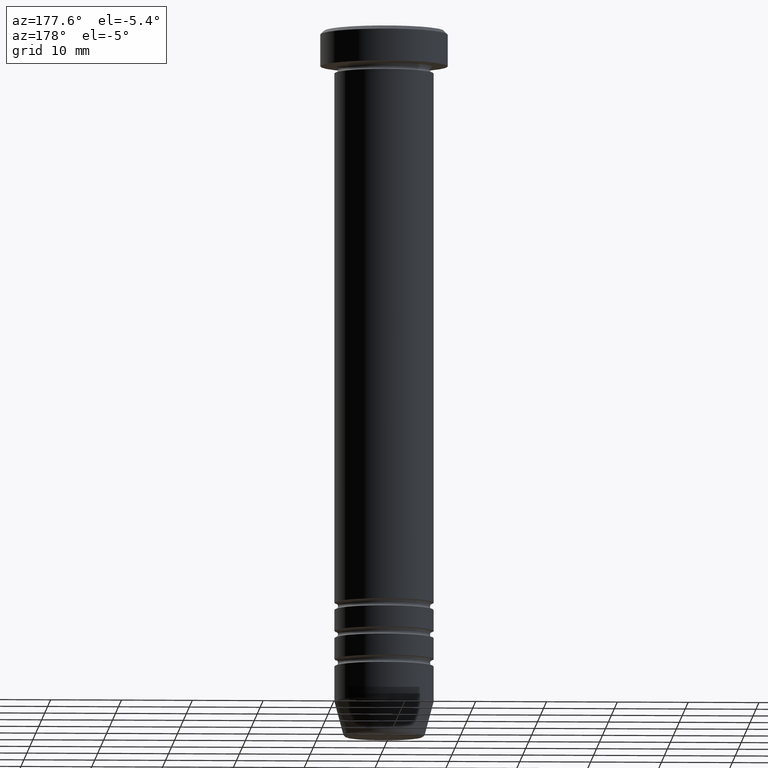
[diagram: clean part render]
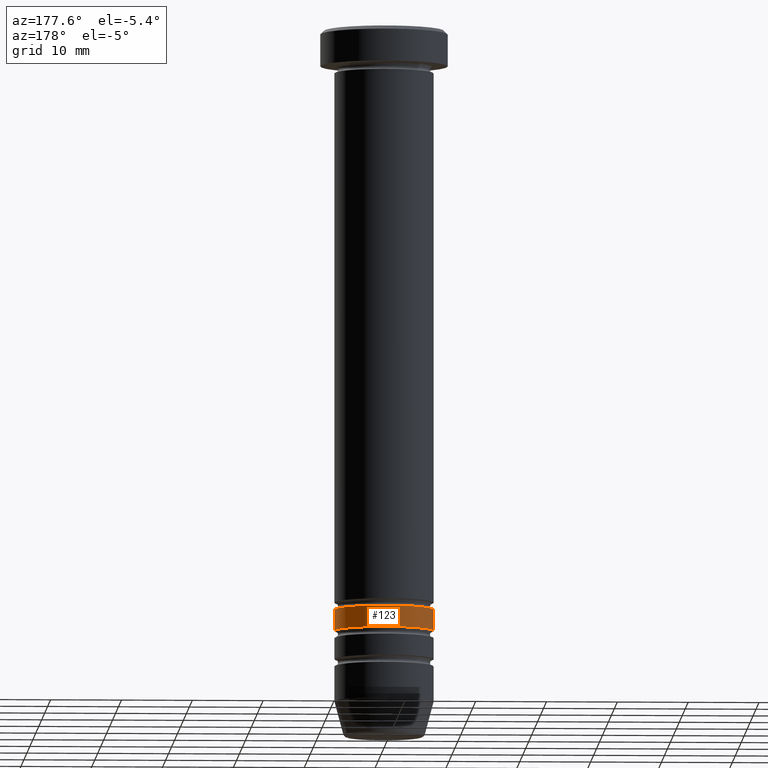
[diagram: same view with one face highlighted and labeled with its STEP entity id]
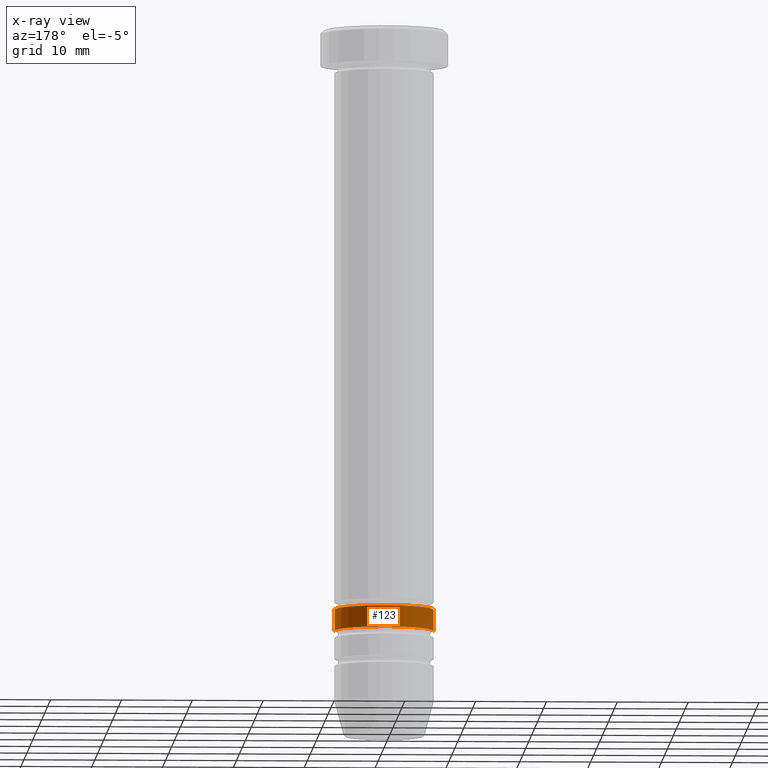
[diagram: x-ray of the same camera — body ghosted, the highlighted face saturated]
A machine part, auxiliary view. The second image highlights one B-rep face of the part: STEP entity #123.
The next image is the same camera in x-ray: the body ghosted, the highlighted face saturated — about 0% of this face is hidden behind the body in this view.
In plain terms, the highlighted cylindrical surface (partial cylindrical patch) has radius 7 mm, axis along (-0, -0, 1).
Its self-contained STEP definition (entity closure, byte-faithful):
#2 = DIRECTION ( 'NONE',  ( -0.000000000000000000, -0.000000000000000000, 1.000000000000000000 ) ) ;
#14 = EDGE_CURVE ( 'NONE', #228, #944, #665, .T. ) ;
#58 = ORIENTED_EDGE ( 'NONE', *, *, #717, .F. ) ;
#62 = VECTOR ( 'NONE', #343, 1000.000000000000000 ) ;
#70 = DIRECTION ( 'NONE',  ( -0.000000000000000000, -0.000000000000000000, 1.000000000000000000 ) ) ;
#123 = ADVANCED_FACE ( 'NONE', ( #1023 ), #357, .T. ) ;
#139 = DIRECTION ( 'NONE',  ( 1.000000000000000000, 0.000000000000000000, 0.000000000000000000 ) ) ;
#141 = VERTEX_POINT ( 'NONE', #450 ) ;
#149 = CARTESIAN_POINT ( 'NONE',  ( -6.999999999999998224, 8.572527594031471218E-16, -84.99999999999998579 ) ) ;
#163 = CARTESIAN_POINT ( 'NONE',  ( 0.000000000000000000, 0.000000000000000000, -84.99999999999998579 ) ) ;
#199 = EDGE_CURVE ( 'NONE', #944, #141, #650, .T. ) ;
#218 = ORIENTED_EDGE ( 'NONE', *, *, #901, .F. ) ;
#228 = VERTEX_POINT ( 'NONE', #740 ) ;
#321 = CARTESIAN_POINT ( 'NONE',  ( -6.999999999999999112, 8.572527594031472204E-16, 0.000000000000000000 ) ) ;
#323 = DIRECTION ( 'NONE',  ( 1.000000000000000000, 0.000000000000000000, 0.000000000000000000 ) ) ;
#343 = DIRECTION ( 'NONE',  ( -0.000000000000000000, -0.000000000000000000, 1.000000000000000000 ) ) ;
#357 = CYLINDRICAL_SURFACE ( 'NONE', #576, 6.999999999999999112 ) ;
#423 = VERTEX_POINT ( 'NONE', #752 ) ;
#450 = CARTESIAN_POINT ( 'NONE',  ( -7.000000000000000888, 8.572527594031474176E-16, -82.00000000000000000 ) ) ;
#487 = EDGE_LOOP ( 'NONE', ( #967, #614, #218, #58 ) ) ;
#533 = CARTESIAN_POINT ( 'NONE',  ( 0.000000000000000000, 0.000000000000000000, 0.000000000000000000 ) ) ;
#576 = AXIS2_PLACEMENT_3D ( 'NONE', #533, #692, #1012 ) ;
#596 = CARTESIAN_POINT ( 'NONE',  ( 6.999999999999999112, 0.000000000000000000, 0.000000000000000000 ) ) ;
#598 = AXIS2_PLACEMENT_3D ( 'NONE', #1045, #1036, #139 ) ;
#614 = ORIENTED_EDGE ( 'NONE', *, *, #199, .T. ) ;
#650 = LINE ( 'NONE', #321, #747 ) ;
#665 = CIRCLE ( 'NONE', #727, 6.999999999999998224 ) ;
#671 = LINE ( 'NONE', #596, #62 ) ;
#692 = DIRECTION ( 'NONE',  ( -0.000000000000000000, -0.000000000000000000, 1.000000000000000000 ) ) ;
#717 = EDGE_CURVE ( 'NONE', #228, #423, #671, .T. ) ;
#727 = AXIS2_PLACEMENT_3D ( 'NONE', #163, #70, #323 ) ;
#740 = CARTESIAN_POINT ( 'NONE',  ( 6.999999999999998224, 0.000000000000000000, -84.99999999999998579 ) ) ;
#747 = VECTOR ( 'NONE', #2, 1000.000000000000000 ) ;
#752 = CARTESIAN_POINT ( 'NONE',  ( 7.000000000000000000, 0.000000000000000000, -82.00000000000000000 ) ) ;
#901 = EDGE_CURVE ( 'NONE', #423, #141, #917, .T. ) ;
#917 = CIRCLE ( 'NONE', #598, 7.000000000000000000 ) ;
#944 = VERTEX_POINT ( 'NONE', #149 ) ;
#967 = ORIENTED_EDGE ( 'NONE', *, *, #14, .T. ) ;
#1012 = DIRECTION ( 'NONE',  ( 1.000000000000000000, 0.000000000000000000, 0.000000000000000000 ) ) ;
#1023 = FACE_OUTER_BOUND ( 'NONE', #487, .T. ) ;
#1036 = DIRECTION ( 'NONE',  ( -0.000000000000000000, -0.000000000000000000, 1.000000000000000000 ) ) ;
#1045 = CARTESIAN_POINT ( 'NONE',  ( 0.000000000000000000, 0.000000000000000000, -82.00000000000000000 ) ) ;